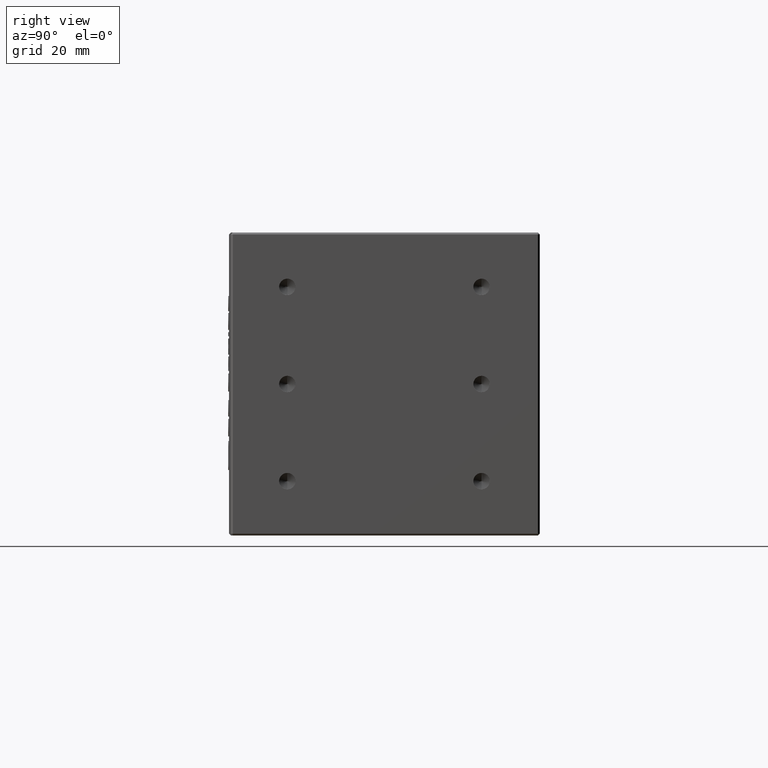
[diagram: clean part render]
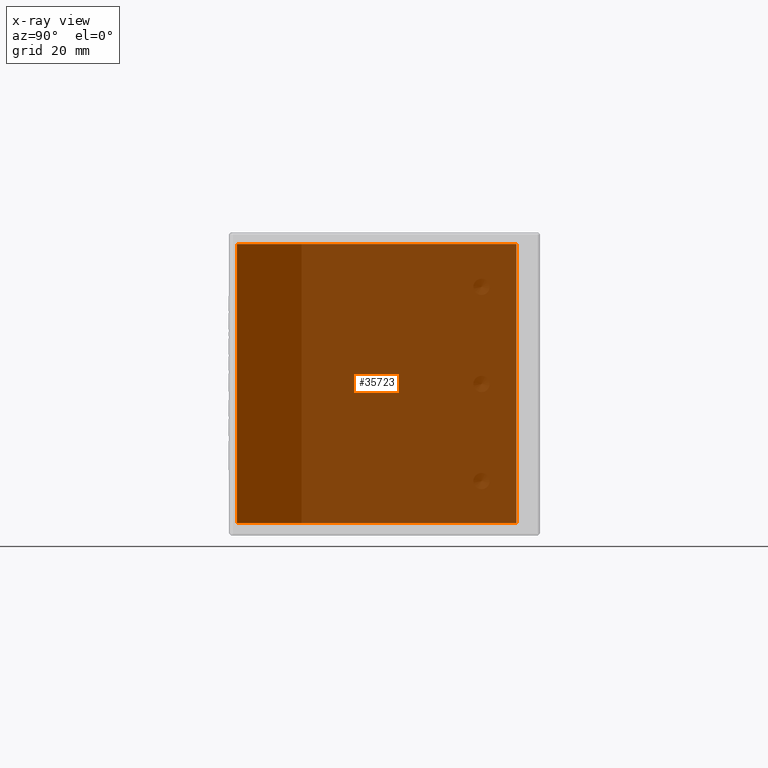
[diagram: x-ray — body ghosted, one internal face saturated and labeled with its STEP entity id]
A machine part, right view, then the same camera in x-ray: the body is ghosted and one INTERNAL B-rep face — a face not visible from any outside direction — is saturated and labeled: STEP entity #35723.
In plain terms, the highlighted planar face has unit normal (-0.7071, -0.7071, 0).
Its self-contained STEP definition (entity closure, byte-faithful):
#1376 = VECTOR ( 'NONE', #8599, 999.9999999999998900 ) ;
#8325 = VERTEX_POINT ( 'NONE', #53834 ) ;
#8599 = DIRECTION ( 'NONE',  ( 0.7071067811865463500, -0.7071067811865487900, -0.0000000000000000000 ) ) ;
#8662 = DIRECTION ( 'NONE',  ( -0.7071067811865463500, 0.7071067811865487900, 0.0000000000000000000 ) ) ;
#9600 = ORIENTED_EDGE ( 'NONE', *, *, #34956, .F. ) ;
#13634 = EDGE_LOOP ( 'NONE', ( #32227, #9600, #36909, #53919 ) ) ;
#15086 = CARTESIAN_POINT ( 'NONE',  ( -32.94402392213646600, 56.06035582334342800, 3.200000000009563200 ) ) ;
#16308 = LINE ( 'NONE', #55977, #45497 ) ;
#20582 = DIRECTION ( 'NONE',  ( -0.0000000000000000000, 0.0000000000000000000, 1.000000000000000000 ) ) ;
#23032 = DIRECTION ( 'NONE',  ( -0.0000000000000000000, 0.0000000000000000000, 1.000000000000000000 ) ) ;
#26135 = EDGE_CURVE ( 'NONE', #36563, #32903, #27245, .T. ) ;
#26706 = CARTESIAN_POINT ( 'NONE',  ( -32.94402392213646600, 56.06035582334342800, 75.00000000000956400 ) ) ;
#27245 = LINE ( 'NONE', #49246, #54760 ) ;
#28790 = FACE_OUTER_BOUND ( 'NONE', #13634, .T. ) ;
#29580 = CARTESIAN_POINT ( 'NONE',  ( 39.03944640265395800, -15.92311450144723400, 75.00000000000956400 ) ) ;
#30593 = LINE ( 'NONE', #41537, #1376 ) ;
#32227 = ORIENTED_EDGE ( 'NONE', *, *, #26135, .F. ) ;
#32903 = VERTEX_POINT ( 'NONE', #60639 ) ;
#33778 = EDGE_CURVE ( 'NONE', #32903, #8325, #30593, .T. ) ;
#34956 = EDGE_CURVE ( 'NONE', #40223, #36563, #57434, .T. ) ;
#35723 = ADVANCED_FACE ( 'NONE', ( #28790 ), #52818, .F. ) ;
#36563 = VERTEX_POINT ( 'NONE', #26706 ) ;
#36909 = ORIENTED_EDGE ( 'NONE', *, *, #69435, .F. ) ;
#40223 = VERTEX_POINT ( 'NONE', #29580 ) ;
#41537 = CARTESIAN_POINT ( 'NONE',  ( -32.94402392213646600, 56.06035582334342800, 3.200000000009563200 ) ) ;
#45497 = VECTOR ( 'NONE', #23032, 1000.000000000000000 ) ;
#49246 = CARTESIAN_POINT ( 'NONE',  ( -32.94402392213646600, 56.06035582334342800, 3.200000000009563200 ) ) ;
#52818 = PLANE ( 'NONE',  #68956 ) ;
#53532 = DIRECTION ( 'NONE',  ( -0.7071067811865487900, -0.7071067811865463500, 0.0000000000000000000 ) ) ;
#53834 = CARTESIAN_POINT ( 'NONE',  ( 39.03944640265395800, -15.92311450144723400, 3.200000000009563200 ) ) ;
#53919 = ORIENTED_EDGE ( 'NONE', *, *, #33778, .F. ) ;
#54760 = VECTOR ( 'NONE', #54805, 1000.000000000000000 ) ;
#54805 = DIRECTION ( 'NONE',  ( 0.0000000000000000000, -0.0000000000000000000, -1.000000000000000000 ) ) ;
#55977 = CARTESIAN_POINT ( 'NONE',  ( 39.03944640265395800, -15.92311450144723400, 3.200000000009563200 ) ) ;
#57434 = LINE ( 'NONE', #69012, #70310 ) ;
#60639 = CARTESIAN_POINT ( 'NONE',  ( -32.94402392213646600, 56.06035582334342800, 3.200000000009563200 ) ) ;
#68956 = AXIS2_PLACEMENT_3D ( 'NONE', #15086, #53532, #20582 ) ;
#69012 = CARTESIAN_POINT ( 'NONE',  ( -32.94402392213646600, 56.06035582334342800, 75.00000000000956400 ) ) ;
#69435 = EDGE_CURVE ( 'NONE', #8325, #40223, #16308, .T. ) ;
#70310 = VECTOR ( 'NONE', #8662, 999.9999999999998900 ) ;